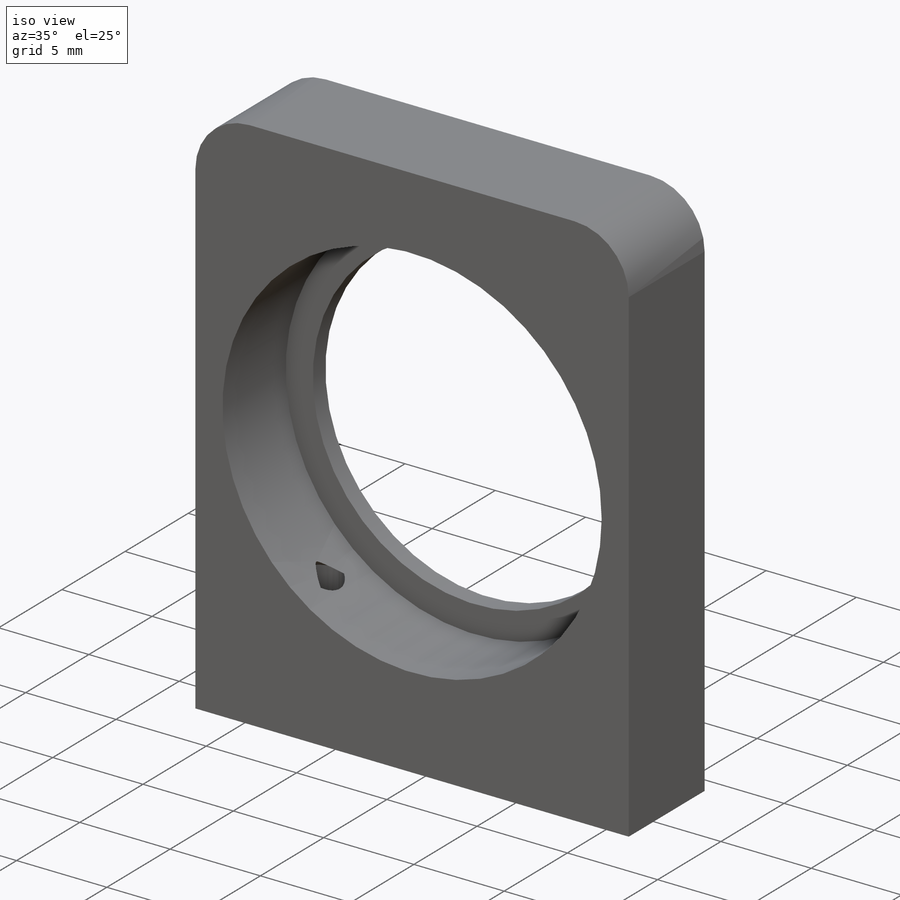
[diagram: iso view]
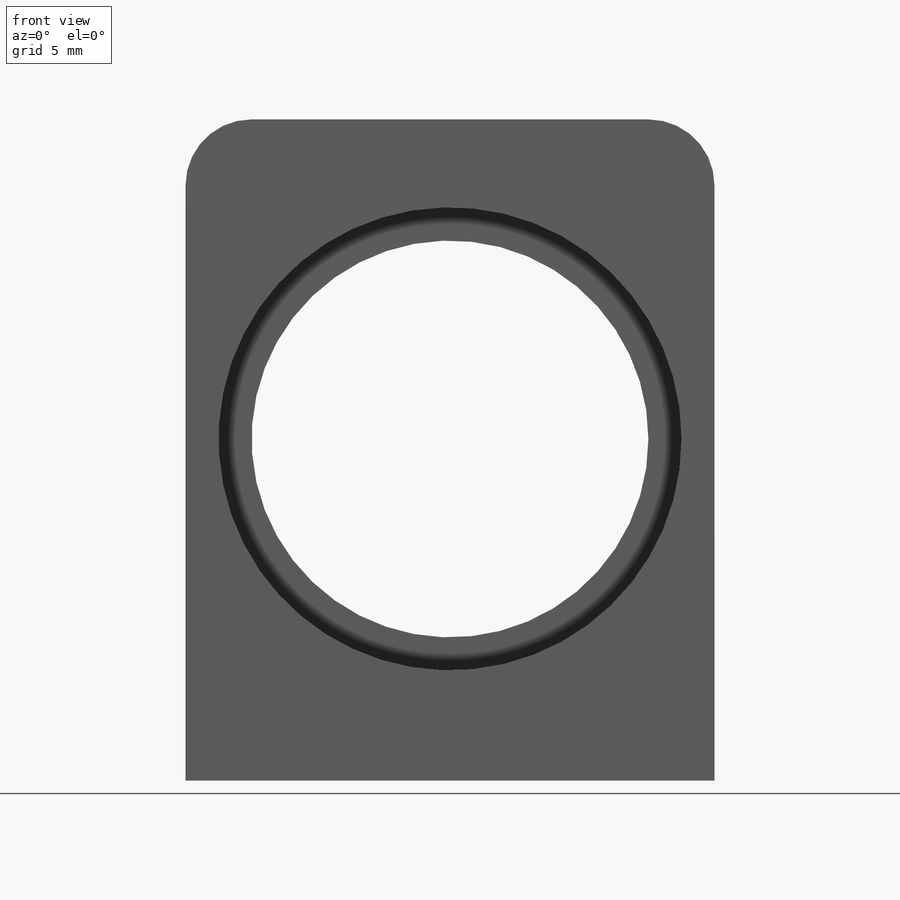
[diagram: front view]
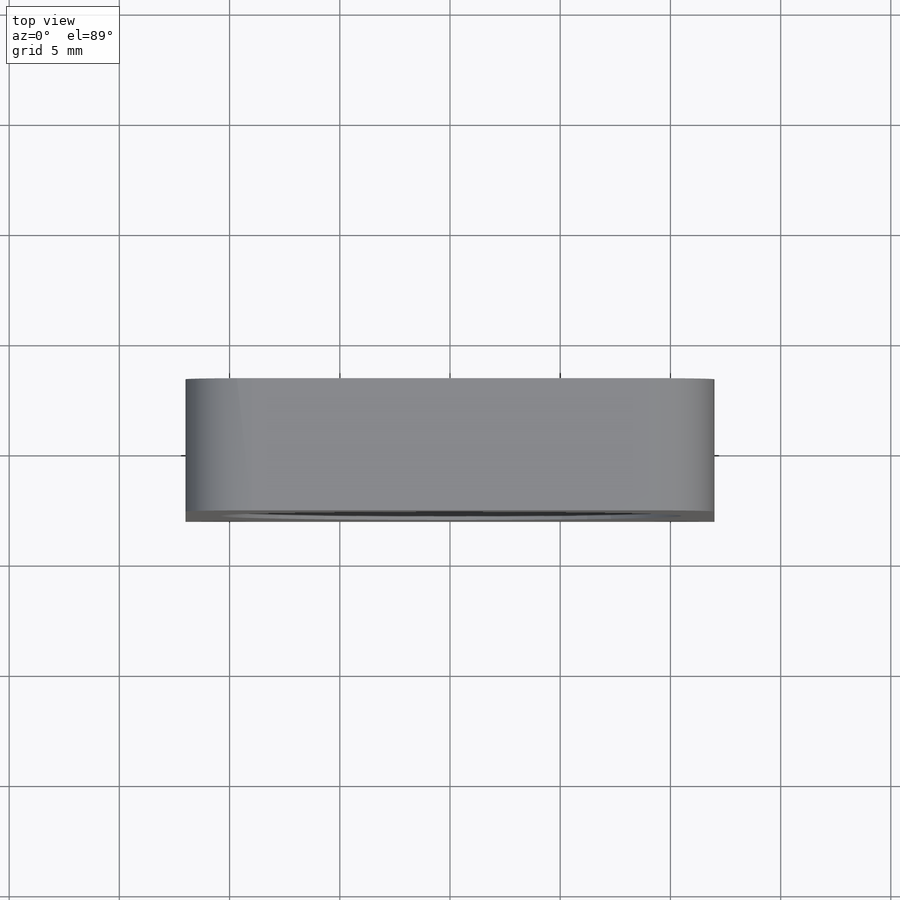
[diagram: top view]
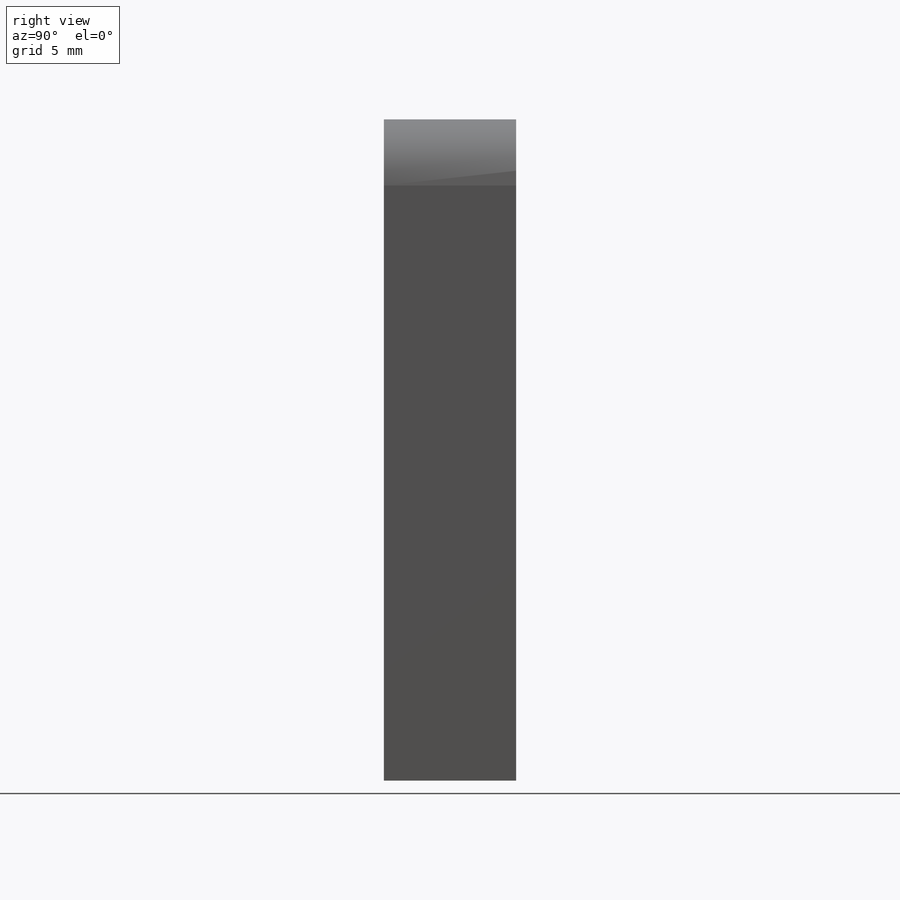
[diagram: right view]
SOLIDWORKS PART (.sldprt)
format: sldprt  version: not decoded by parser v0  size: 220,672 bytes
history: native  units: mm
features: sketch x5, plane x3, cut_extrude x2, thread x2, material x1, extrude x1, fillet x1, hole x1 (+9 scaffold rows collapsed)
feature tree (25):
  scaffold x9  (default folders/planes/origin — collapsed)
  material  "Material <nicht festgelegt>"
  plane  "Ebene vorne"
  plane  "Ebene oben"
  plane  "Ebene rechts"
  sketch  "Skizze1"  dims[D1=24.0mm D2=30.0mm]
  extrude  "Aufsatz-Linear austragen1"  Depth=6mm
  sketch  "Skizze2"  dims[D1=21.0mm D2=18.0mm D3=15.5mm]
  cut_extrude  "Schnitt-Linear austragen2"  Depth=1mm
  cut_extrude  "Schnitt-Linear austragen3"  [1 undecoded]
  sketch  "Skizze2<3>"
  fillet  "Verrundung1"  Radius=3mm
  hole  "M3 Gewindebohrung1"  Diameter=2.5mm Depth=7mm
  sketch  "Skizze4"  dims[D1=14.0mm D2=3.5mm]
  sketch  "Skizze5"  dims[hole-wizard template sketch: 47 standard entries collapsed; hole parameters kept: c15.Bohrungstiefe=7.0mm c15.D3=~14.816244mm c15.Spitzenwinkel=118.0deg]
  thread  "Bohrungsgewinde1"  Diameter=5mm  [1 undecoded]
  thread  "Bohrungsgewinde2"  Diameter=5mm  [1 undecoded]
decode coverage: 10 of 12 modeling features carry decoded parameters
note: ~ marks probable driven/reference dimensions
note: 3 parameter values undecoded
note: suppression state not decoded; provenance and decode notes live in map.json
